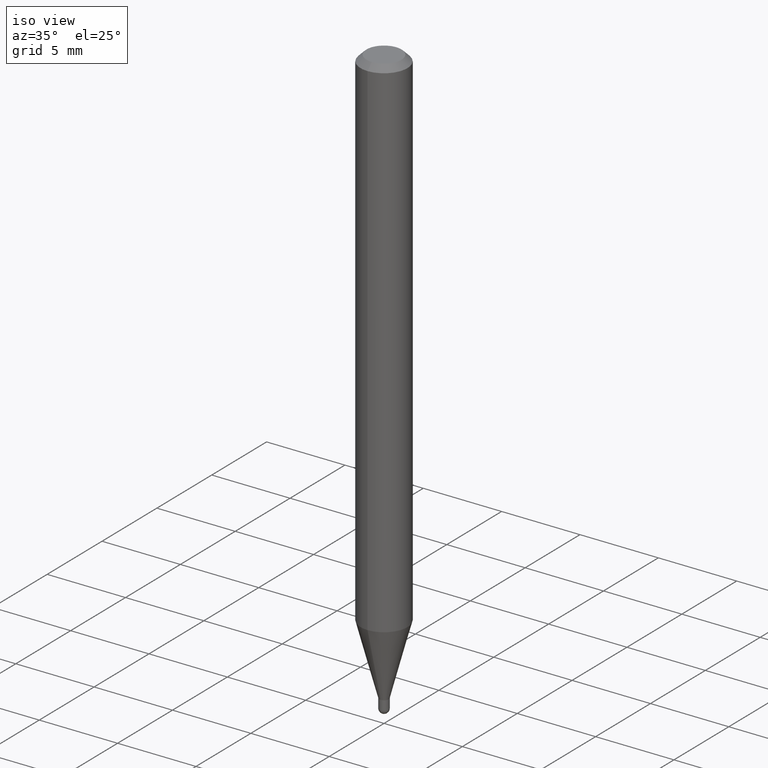
[diagram: clean part render]
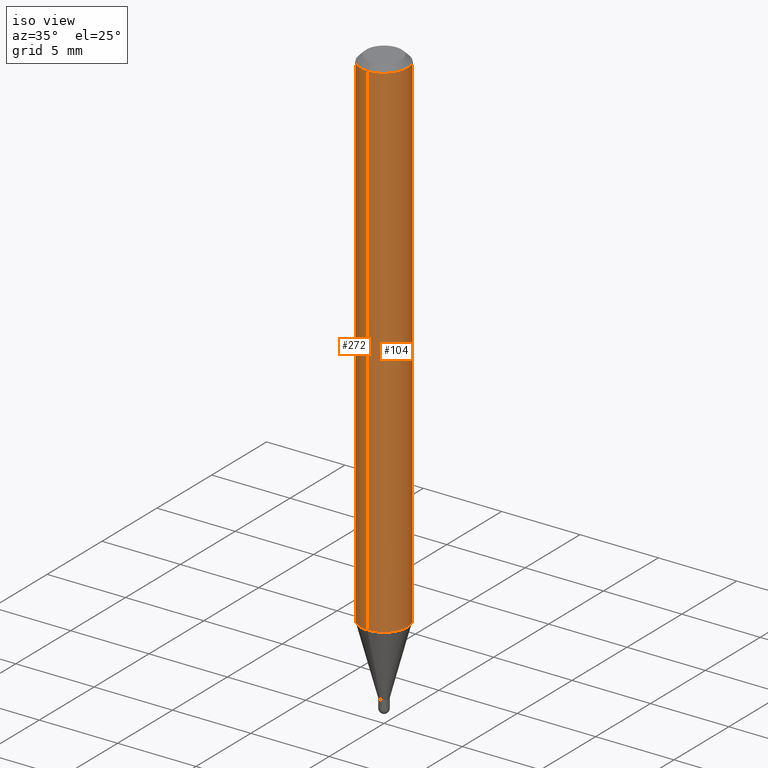
[diagram: same view with one multi-face feature highlighted, each face labeled with its STEP entity id]
A machine part, iso view. The highlighted faces form ONE feature: a constant-radius fillet chain: 2 tangent blend faces with common blend radius 1.4999 mm. The faces share edges in the B-rep.
Their STEP definitions:
[1] entity #104 (Cylinder):
#10 = EDGE_CURVE ( 'NONE', #201, #263, #302, .T. ) ;
#14 = AXIS2_PLACEMENT_3D ( 'NONE', #217, #132, #504 ) ;
#18 = CARTESIAN_POINT ( 'NONE',  ( 4.195754854663707516E-16, 0.05904999999999994975, -0.01500000000000028741 ) ) ;
#21 = CARTESIAN_POINT ( 'NONE',  ( -4.123439461173739834E-16, -0.05904999999999999832, 2.061757890615150317E-16 ) ) ;
#29 = DIRECTION ( 'NONE',  ( -2.445423680011858089E-29, 3.491545962091702599E-15, 1.000000000000000000 ) ) ;
#35 = DIRECTION ( 'NONE',  ( -6.982962677686265922E-15, -1.000000000000000000, 3.491545962091702599E-15 ) ) ;
#41 = ORIENTED_EDGE ( 'NONE', *, *, #10, .T. ) ;
#56 = CARTESIAN_POINT ( 'NONE',  ( 0.000000000000000000, 0.000000000000000000, 0.000000000000000000 ) ) ;
#79 = VERTEX_POINT ( 'NONE', #463 ) ;
#92 = ORIENTED_EDGE ( 'NONE', *, *, #433, .F. ) ;
#104 = ADVANCED_FACE ( 'NONE', ( #456 ), #179, .T. ) ;
#113 = DIRECTION ( 'NONE',  ( -2.445423680011858089E-29, 3.491545962091702599E-15, 1.000000000000000000 ) ) ;
#123 = EDGE_LOOP ( 'NONE', ( #479, #41, #480, #92 ) ) ;
#131 = DIRECTION ( 'NONE',  ( -2.445423680011858089E-29, 3.491545962091702599E-15, 1.000000000000000000 ) ) ;
#132 = DIRECTION ( 'NONE',  ( -2.445423680011858089E-29, 3.491545962091702599E-15, 1.000000000000000000 ) ) ;
#139 = VECTOR ( 'NONE', #29, 39.37007874015748143 ) ;
#156 = VECTOR ( 'NONE', #330, 39.37007874015748143 ) ;
#179 = CYLINDRICAL_SURFACE ( 'NONE', #409, 0.05904999999999999832 ) ;
#194 = VERTEX_POINT ( 'NONE', #422 ) ;
#201 = VERTEX_POINT ( 'NONE', #493 ) ;
#211 = EDGE_CURVE ( 'NONE', #194, #201, #374, .T. ) ;
#217 = CARTESIAN_POINT ( 'NONE',  ( 3.140805823306065570E-29, -4.484404064503547858E-15, -1.284360599342374787 ) ) ;
#259 = AXIS2_PLACEMENT_3D ( 'NONE', #329, #131, #498 ) ;
#263 = VERTEX_POINT ( 'NONE', #18 ) ;
#286 = CIRCLE ( 'NONE', #259, 0.05904999999999999832 ) ;
#302 = LINE ( 'NONE', #459, #139 ) ;
#322 = EDGE_CURVE ( 'NONE', #79, #263, #286, .T. ) ;
#329 = CARTESIAN_POINT ( 'NONE',  ( 3.668135520017806926E-31, -5.237318943137582741E-17, -0.01500000000000008098 ) ) ;
#330 = DIRECTION ( 'NONE',  ( -2.445423680011858089E-29, 3.491545962091702599E-15, 1.000000000000000000 ) ) ;
#374 = CIRCLE ( 'NONE', #14, 0.05904999999999999832 ) ;
#409 = AXIS2_PLACEMENT_3D ( 'NONE', #56, #113, #35 ) ;
#412 = LINE ( 'NONE', #21, #156 ) ;
#422 = CARTESIAN_POINT ( 'NONE',  ( -4.123439461173426262E-16, -0.05905000000000448085, -1.284360599342374565 ) ) ;
#433 = EDGE_CURVE ( 'NONE', #194, #79, #412, .T. ) ;
#456 = FACE_OUTER_BOUND ( 'NONE', #123, .T. ) ;
#459 = CARTESIAN_POINT ( 'NONE',  ( 4.195754854663390985E-16, 0.05904999999999999832, -2.061757890615150317E-16 ) ) ;
#463 = CARTESIAN_POINT ( 'NONE',  ( -4.123439461173736383E-16, -0.05905000000000005383, -0.01499999999999987454 ) ) ;
#479 = ORIENTED_EDGE ( 'NONE', *, *, #211, .T. ) ;
#480 = ORIENTED_EDGE ( 'NONE', *, *, #322, .F. ) ;
#493 = CARTESIAN_POINT ( 'NONE',  ( 4.195754854663704065E-16, 0.05904999999999550886, -1.284360599342375009 ) ) ;
#498 = DIRECTION ( 'NONE',  ( -6.982962677686265922E-15, -1.000000000000000000, 3.505890868245046092E-15 ) ) ;
#504 = DIRECTION ( 'NONE',  ( -6.982962677686265922E-15, -1.000000000000000000, 4.626330217890369336E-15 ) ) ;
[2] entity #272 (Cylinder):
#10 = EDGE_CURVE ( 'NONE', #201, #263, #302, .T. ) ;
#18 = CARTESIAN_POINT ( 'NONE',  ( 4.195754854663707516E-16, 0.05904999999999994975, -0.01500000000000028741 ) ) ;
#21 = CARTESIAN_POINT ( 'NONE',  ( -4.123439461173739834E-16, -0.05904999999999999832, 2.061757890615150317E-16 ) ) ;
#29 = DIRECTION ( 'NONE',  ( -2.445423680011858089E-29, 3.491545962091702599E-15, 1.000000000000000000 ) ) ;
#52 = CARTESIAN_POINT ( 'NONE',  ( 3.668135520017806926E-31, -5.237318943137582741E-17, -0.01500000000000008098 ) ) ;
#69 = DIRECTION ( 'NONE',  ( -2.445423680011858089E-29, 3.491545962091702599E-15, 1.000000000000000000 ) ) ;
#74 = CARTESIAN_POINT ( 'NONE',  ( 0.000000000000000000, 0.000000000000000000, 0.000000000000000000 ) ) ;
#79 = VERTEX_POINT ( 'NONE', #463 ) ;
#101 = FACE_OUTER_BOUND ( 'NONE', #334, .T. ) ;
#108 = ORIENTED_EDGE ( 'NONE', *, *, #433, .T. ) ;
#126 = ORIENTED_EDGE ( 'NONE', *, *, #10, .F. ) ;
#133 = EDGE_CURVE ( 'NONE', #201, #194, #473, .T. ) ;
#134 = DIRECTION ( 'NONE',  ( -2.445423680011858089E-29, 3.491545962091702599E-15, 1.000000000000000000 ) ) ;
#138 = DIRECTION ( 'NONE',  ( -6.982962677686265922E-15, -1.000000000000000000, 3.505890868245046092E-15 ) ) ;
#139 = VECTOR ( 'NONE', #29, 39.37007874015748143 ) ;
#156 = VECTOR ( 'NONE', #330, 39.37007874015748143 ) ;
#194 = VERTEX_POINT ( 'NONE', #422 ) ;
#201 = VERTEX_POINT ( 'NONE', #493 ) ;
#229 = AXIS2_PLACEMENT_3D ( 'NONE', #450, #413, #254 ) ;
#254 = DIRECTION ( 'NONE',  ( -6.982962677686265922E-15, -1.000000000000000000, 4.626330217890369336E-15 ) ) ;
#263 = VERTEX_POINT ( 'NONE', #18 ) ;
#265 = CYLINDRICAL_SURFACE ( 'NONE', #352, 0.05904999999999999832 ) ;
#272 = ADVANCED_FACE ( 'NONE', ( #101 ), #265, .T. ) ;
#302 = LINE ( 'NONE', #459, #139 ) ;
#330 = DIRECTION ( 'NONE',  ( -2.445423680011858089E-29, 3.491545962091702599E-15, 1.000000000000000000 ) ) ;
#334 = EDGE_LOOP ( 'NONE', ( #126, #367, #108, #477 ) ) ;
#343 = DIRECTION ( 'NONE',  ( -6.982962677686265922E-15, -1.000000000000000000, 3.491545962091702599E-15 ) ) ;
#352 = AXIS2_PLACEMENT_3D ( 'NONE', #74, #69, #343 ) ;
#367 = ORIENTED_EDGE ( 'NONE', *, *, #133, .T. ) ;
#378 = EDGE_CURVE ( 'NONE', #263, #79, #465, .T. ) ;
#412 = LINE ( 'NONE', #21, #156 ) ;
#413 = DIRECTION ( 'NONE',  ( -2.445423680011858089E-29, 3.491545962091702599E-15, 1.000000000000000000 ) ) ;
#422 = CARTESIAN_POINT ( 'NONE',  ( -4.123439461173426262E-16, -0.05905000000000448085, -1.284360599342374565 ) ) ;
#433 = EDGE_CURVE ( 'NONE', #194, #79, #412, .T. ) ;
#450 = CARTESIAN_POINT ( 'NONE',  ( 3.140805823306065570E-29, -4.484404064503547858E-15, -1.284360599342374787 ) ) ;
#459 = CARTESIAN_POINT ( 'NONE',  ( 4.195754854663390985E-16, 0.05904999999999999832, -2.061757890615150317E-16 ) ) ;
#463 = CARTESIAN_POINT ( 'NONE',  ( -4.123439461173736383E-16, -0.05905000000000005383, -0.01499999999999987454 ) ) ;
#465 = CIRCLE ( 'NONE', #490, 0.05904999999999999832 ) ;
#473 = CIRCLE ( 'NONE', #229, 0.05904999999999999832 ) ;
#477 = ORIENTED_EDGE ( 'NONE', *, *, #378, .F. ) ;
#490 = AXIS2_PLACEMENT_3D ( 'NONE', #52, #134, #138 ) ;
#493 = CARTESIAN_POINT ( 'NONE',  ( 4.195754854663704065E-16, 0.05904999999999550886, -1.284360599342375009 ) ) ;